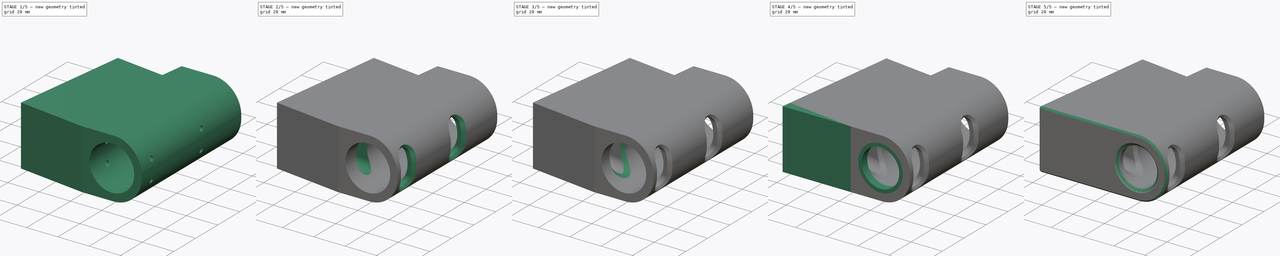
[diagram: build sequence overview — one tinted view per stage of 5, left to right]
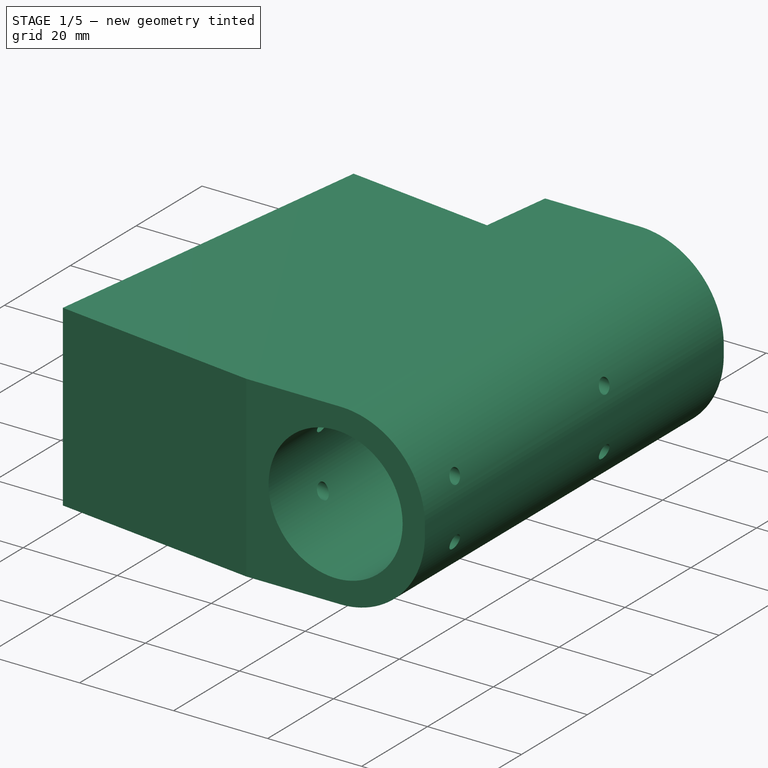
[diagram: stage 1 of 5 — iso view after this stage's code; geometry added in this stage tinted green]
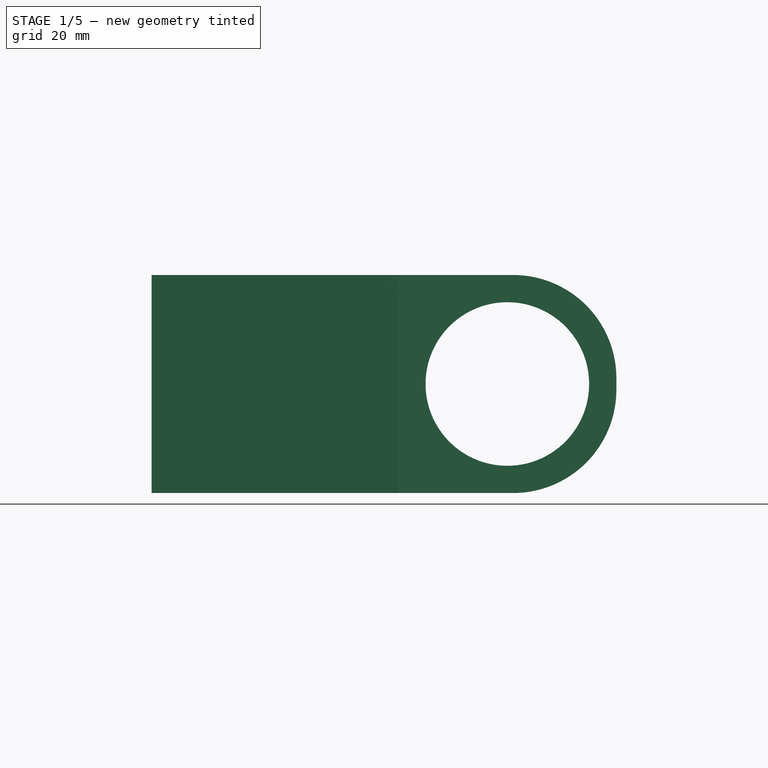
[diagram: stage 1 of 5 — front view after this stage's code; geometry added in this stage tinted green]
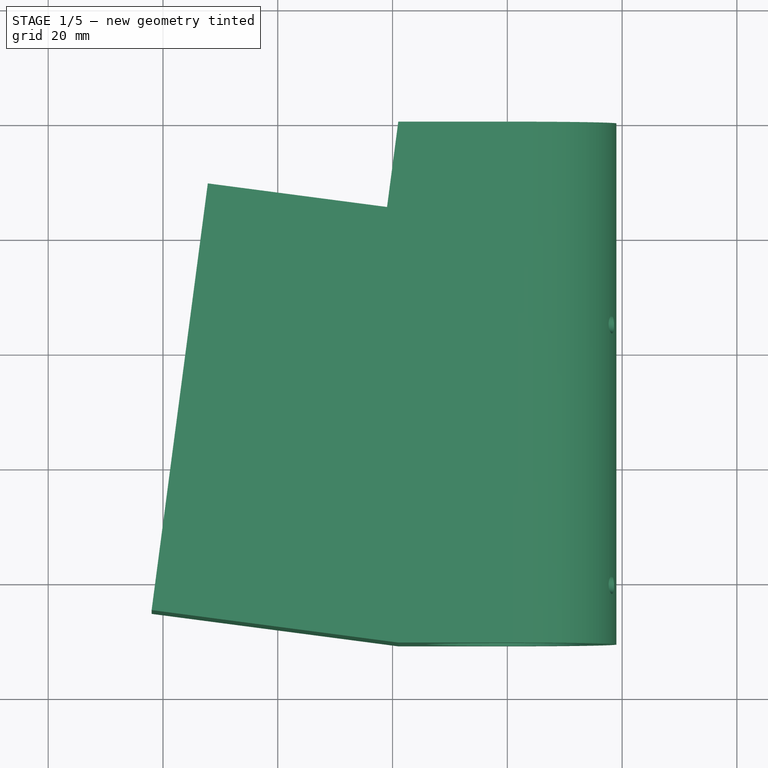
[diagram: stage 1 of 5 — top view after this stage's code; geometry added in this stage tinted green]
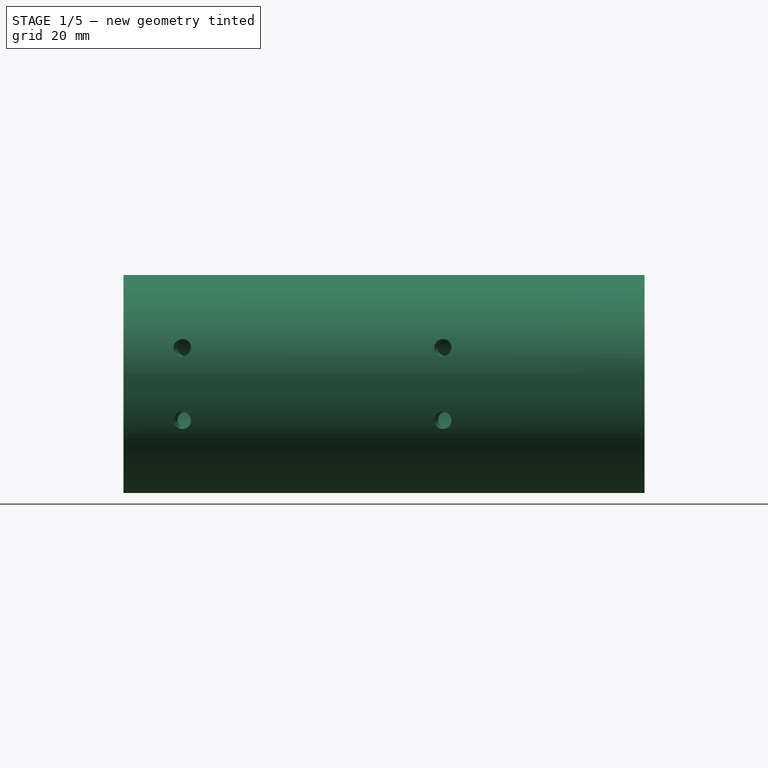
[diagram: stage 1 of 5 — right view after this stage's code; geometry added in this stage tinted green]
FCSTD DOCUMENT  (FreeCAD 0.18R16110 (Git))
Label: Support_mat_V1
License: All rights reserved
LicenseURL: http://en.wikipedia.org/wiki/All_rights_reserved
objects: PartDesign::Chamfer×10, Sketcher::SketchObject×8, PartDesign::Pocket×5, PartDesign::Pad×3, PartDesign::Fillet×1, PartDesign::Plane×1, PartDesign::Body×1
note: 37 computed .brp shape members not serialized (recipe doc carries the construction recipe); baked Part::Feature solids carry a one-line shape summary decoded from their .brp

FEATURE [Sketcher::SketchObject] Sketch
  MapMode = 5
  Support = -> [XY_Plane]
  sketch-geometry (7):
    g0: LineSegment StartX=19 StartY=0 StartZ=0 EndX=-19 EndY=0 EndZ=0
    g1: LineSegment StartX=-61.9779 StartY=-85.1185 StartZ=0 EndX=-19 EndY=-90.7766 EndZ=0
    g2: LineSegment StartX=-19 StartY=-90.7766 StartZ=0 EndX=19 EndY=-90.7766 EndZ=0
    g3: LineSegment StartX=19 StartY=-90.7766 StartZ=0 EndX=19 EndY=0 EndZ=0
    g4: LineSegment StartX=-19 StartY=0 StartZ=0 EndX=-20.9579 EndY=-14.8717 EndZ=0
    g5: LineSegment StartX=-20.9579 StartY=-14.8717 StartZ=0 EndX=-52.1884 EndY=-10.7601 EndZ=0
    g6: LineSegment StartX=-52.1884 StartY=-10.7601 StartZ=0 EndX=-61.9779 EndY=-85.1185 EndZ=0
  constraints (20):
    c: PointOnObject(g0,g-1)
    c: Coincident(g1,g2)
    c: Horizontal(g2)
    c: Coincident(g2,g3)
    c: Coincident(g3,g0)
    c: Vertical(g3)
    c: Coincident(g0,g4)
    c: Coincident(g4,g5)
    c: Coincident(g5,g6)
    c: Coincident(g6,g1)
    c: Angle(g4,g0) = 1.7017
    c: Perpendicular(g4,g5)
    c: Perpendicular(g5,g6)
    c: Perpendicular(g1,g6)
    c: Distance(g5) = 31.5
    c: Distance(g4) = 15
    c: DistanceX(g0,g0) = 38
    c: Distance(g6) = 75
    c: Equal(g2,g0)
    c: Symmetric(g0,g0,g-2)
FEATURE [PartDesign::Pad] Pad
  Length = 38
  Length2 = 100
  Profile = -> Sketch
  Type = 0
FEATURE [Sketcher::SketchObject] Sketch001
  MapMode = 5
  Placement = pos=(0,0,0) rot=(0,0.707107,0.707107;3.14159rad)
  Support = -> [Pad]
  sketch-geometry (1):
    g0: Circle CenterX=0 CenterY=19 CenterZ=0 NormalX=0 NormalY=0 NormalZ=1 AngleXU=0 Radius=14.25
  constraints (3):
    c: Radius(g0) = 14.25
    c: Distance(g-1,g0) = 19
    c: PointOnObject(g0,g-2)
FEATURE [PartDesign::Pocket] Pocket
  BaseFeature = -> Pad
  Length = 100
  Length2 = 100
  Profile = -> Sketch001
  Type = 0
FEATURE [PartDesign::Fillet] Fillet
  Base = -> Pocket [Edge7,Edge8]
  BaseFeature = -> Pocket
  Radius = 18
FEATURE [Sketcher::SketchObject] Sketch002
  ExternalGeometry = -> [Fillet]
  MapMode = 5
  Placement = pos=(-49.9068,6.57036,0) rot=(-0.527011,0.600941,0.600941;4.11164rad)
  Support = -> [Fillet]
  sketch-geometry (4):
    g0: Circle CenterX=32.48 CenterY=25.3333 CenterZ=0 NormalX=0 NormalY=0 NormalZ=1 AngleXU=0 Radius=1.5
    g1: Circle CenterX=32.48 CenterY=12.6667 CenterZ=0 NormalX=0 NormalY=0 NormalZ=1 AngleXU=0 Radius=1.5
    g2: Circle CenterX=77.48 CenterY=25.3333 CenterZ=0 NormalX=0 NormalY=0 NormalZ=1 AngleXU=0 Radius=1.5
    g3: Circle CenterX=77.48 CenterY=12.6667 CenterZ=0 NormalX=0 NormalY=0 NormalZ=1 AngleXU=0 Radius=1.5
  constraints (12):
    c: Radius(g3) = 1.5
    c: Equal(g3,g2)
    c: Equal(g3,g0)
    c: Equal(g3,g1)
    c: Distance(g0,g-3) = 15
    c: Distance(g1,g-3) = 15
    c: Distance(g2,g-5) = 15
    c: Distance(g3,g-5) = 15
    c: DistanceY(g-1,g1) = 12.6667
    c: Distance(g0,g-4) = 12.6667
    c: Distance(g2,g-4) = 12.6667
    c: DistanceY(g-1,g3) = 12.6667
FEATURE [PartDesign::Pocket] Pocket001
  BaseFeature = -> Fillet
  Length = 100
  Length2 = 100
  Profile = -> Sketch002
  Type = 0
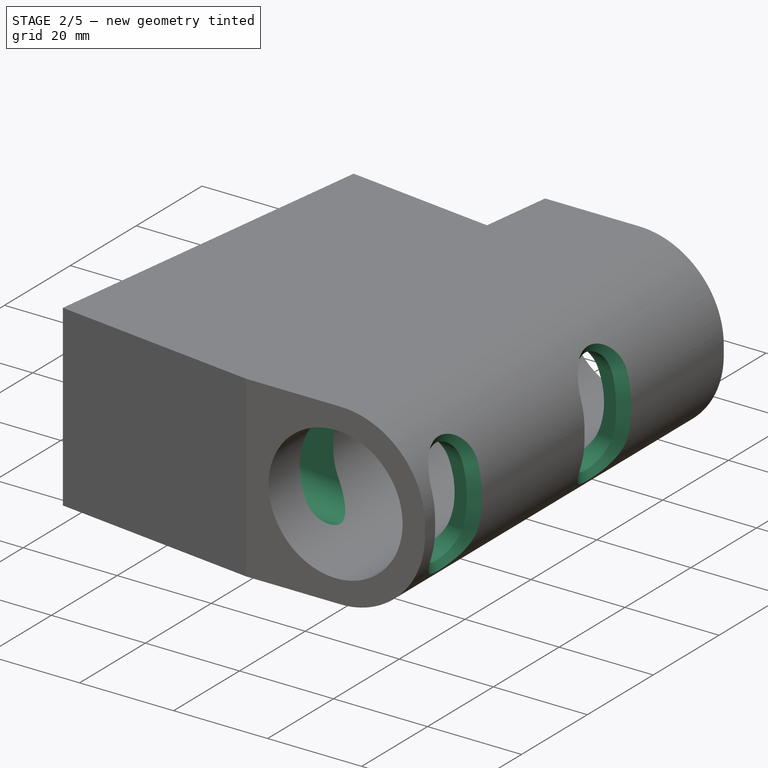
[diagram: stage 2 of 5 — iso view after this stage's code; geometry added in this stage tinted green]
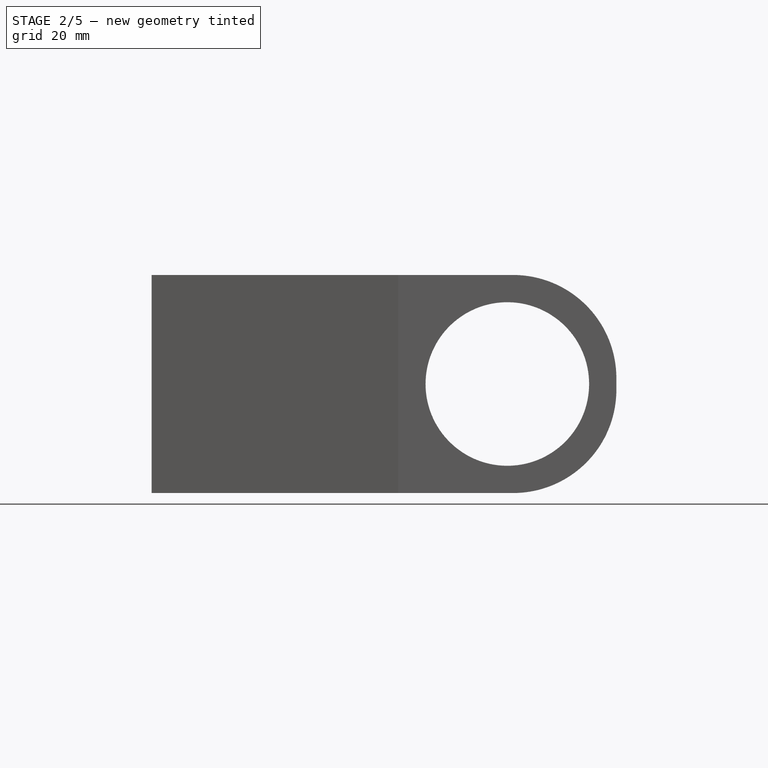
[diagram: stage 2 of 5 — front view after this stage's code; geometry added in this stage tinted green]
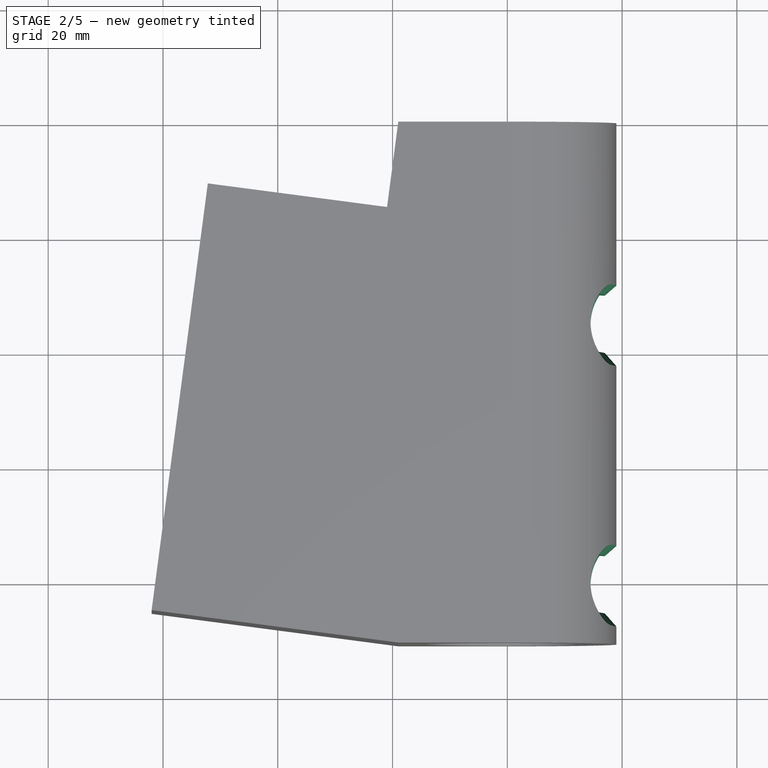
[diagram: stage 2 of 5 — top view after this stage's code; geometry added in this stage tinted green]
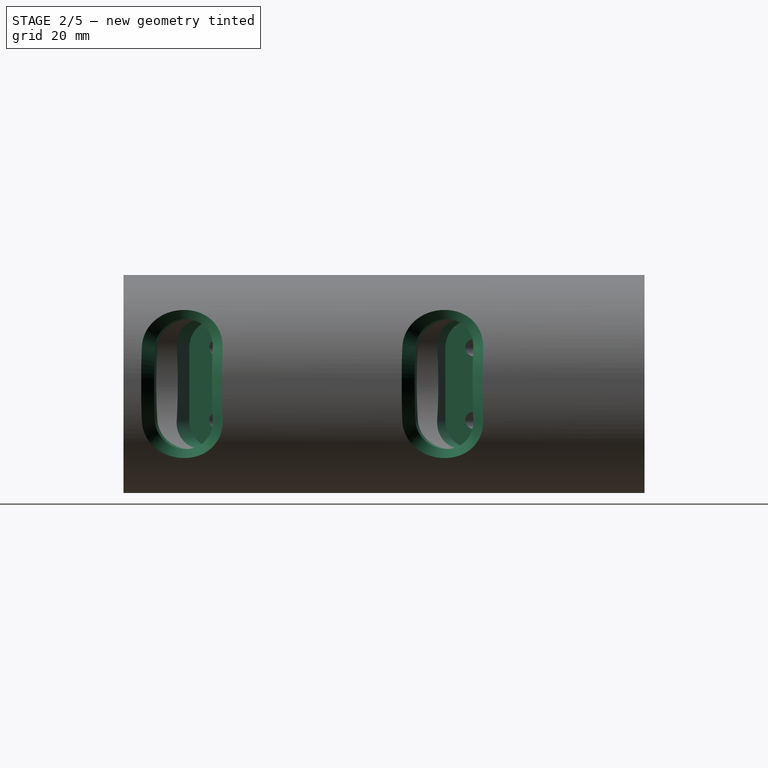
[diagram: stage 2 of 5 — right view after this stage's code; geometry added in this stage tinted green]
FEATURE [PartDesign::Plane] DatumPlane
  Length = 125.134
  MapMode = 5
  Placement = pos=(-18.6763,2.45878,0) rot=(-0.527011,0.600941,0.600941;4.11164rad)
  ResizeMode = 0
  Support = -> [Pocket001]
  Width = 62.57
FEATURE [Sketcher::SketchObject] Sketch003
  ExternalGeometry = -> [Pocket001]
  MapMode = 5
  Placement = pos=(-18.6763,2.45878,0) rot=(-0.527011,0.600941,0.600941;4.11164rad)
  Support = -> [DatumPlane]
  sketch-geometry (8):
    g0: ArcOfCircle CenterX=32.48 CenterY=25.3333 CenterZ=0 NormalX=0 NormalY=0 NormalZ=1 AngleXU=0 Radius=5 StartAngle=1.1e-15 EndAngle=3.14159
    g1: ArcOfCircle CenterX=32.48 CenterY=12.6667 CenterZ=0 NormalX=0 NormalY=0 NormalZ=1 AngleXU=0 Radius=5 StartAngle=3.14159 EndAngle=6.28319
    g2: LineSegment StartX=27.48 StartY=25.3333 StartZ=0 EndX=27.48 EndY=12.6667 EndZ=0
    g3: LineSegment StartX=37.48 StartY=25.3333 StartZ=0 EndX=37.48 EndY=12.6667 EndZ=0
    g4: ArcOfCircle CenterX=77.48 CenterY=25.3333 CenterZ=0 NormalX=0 NormalY=0 NormalZ=1 AngleXU=0 Radius=5 StartAngle=0 EndAngle=3.14159
    g5: ArcOfCircle CenterX=77.48 CenterY=12.6667 CenterZ=0 NormalX=0 NormalY=0 NormalZ=1 AngleXU=0 Radius=5 StartAngle=3.14159 EndAngle=6.28319
    g6: LineSegment StartX=72.48 StartY=25.3333 StartZ=0 EndX=72.48 EndY=12.6667 EndZ=0
    g7: LineSegment StartX=82.48 StartY=25.3333 StartZ=0 EndX=82.48 EndY=12.6667 EndZ=0
  constraints (16):
    c: Tangent(g0,g3) = 1.5708
    c: Tangent(g0,g2) = -1.5708
    c: Tangent(g2,g1) = -1.5708
    c: Tangent(g3,g1) = 1.5708
    c: Vertical(g2)
    c: Coincident(g0,g-3)
    c: Coincident(g1,g-4)
    c: Radius(g1) = 5
    c: Tangent(g4,g7) = 1.5708
    c: Tangent(g4,g6) = -1.5708
    c: Tangent(g6,g5) = -1.5708
    c: Tangent(g7,g5) = 1.5708
    c: Vertical(g6)
    c: Coincident(g4,g-5)
    c: Coincident(g5,g-6)
    c: Radius(g5) = 5
FEATURE [PartDesign::Pocket] Pocket002
  BaseFeature = -> Pocket001
  Length = 70
  Length2 = 100
  Profile = -> Sketch003
  Type = 0
FEATURE [Sketcher::SketchObject] Sketch004
  ExternalGeometry = -> [Pocket002,DatumPlane]
  MapMode = 5
  Placement = pos=(-2.2816,-17.3305,0) rot=(0.046297,0.706349,0.706349;3.04907rad)
  Support = -> [Pocket002]
  sketch-geometry (1):
    g0: Circle CenterX=34.8375 CenterY=19 CenterZ=0 NormalX=0 NormalY=0 NormalZ=1 AngleXU=0 Radius=1.5
  constraints (3):
    c: Radius(g0) = 1.5
    c: Distance(g0,g-3) = 19
    c: Distance(g0,g-4) = 15.5
FEATURE [PartDesign::Pocket] Pocket003
  BaseFeature = -> Pocket002
  Length = 30
  Length2 = 100
  Profile = -> Sketch004
  Type = 0
FEATURE [PartDesign::Chamfer] Chamfer
  Base = -> Pocket003 [Edge80,Edge82,Edge83,Edge85,Edge84]
  BaseFeature = -> Pocket003
  Size = 2
FEATURE [PartDesign::Chamfer] Chamfer001
  Base = -> Chamfer [Edge52,Edge48]
  BaseFeature = -> Chamfer
  Size = 2
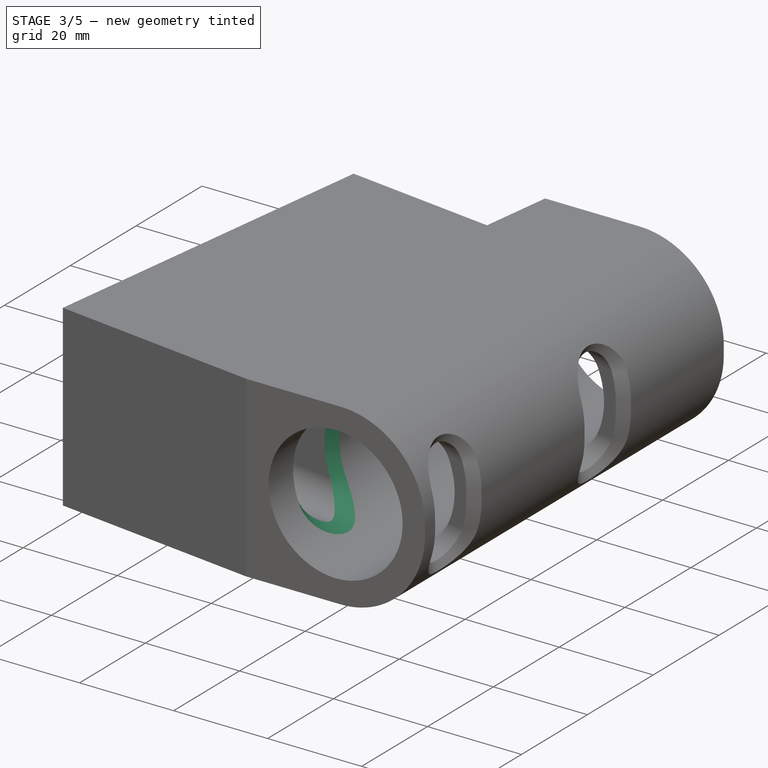
[diagram: stage 3 of 5 — iso view after this stage's code; geometry added in this stage tinted green]
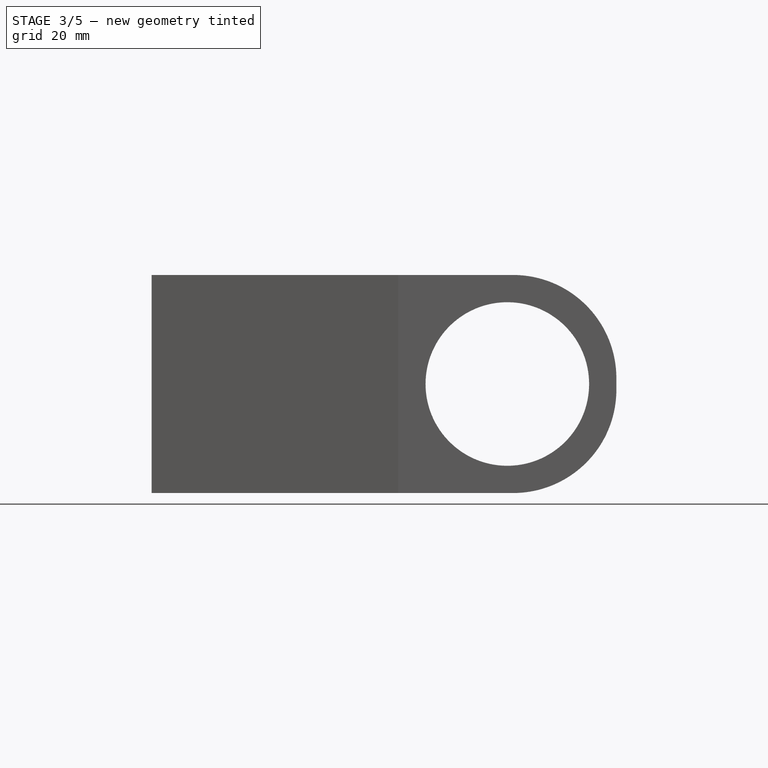
[diagram: stage 3 of 5 — front view after this stage's code; geometry added in this stage tinted green]
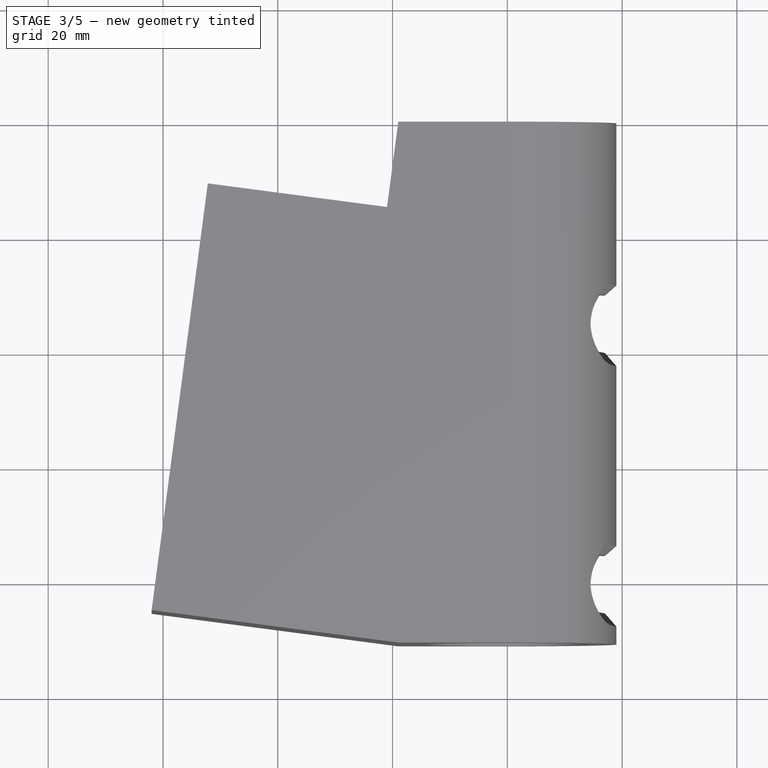
[diagram: stage 3 of 5 — top view after this stage's code; geometry added in this stage tinted green]
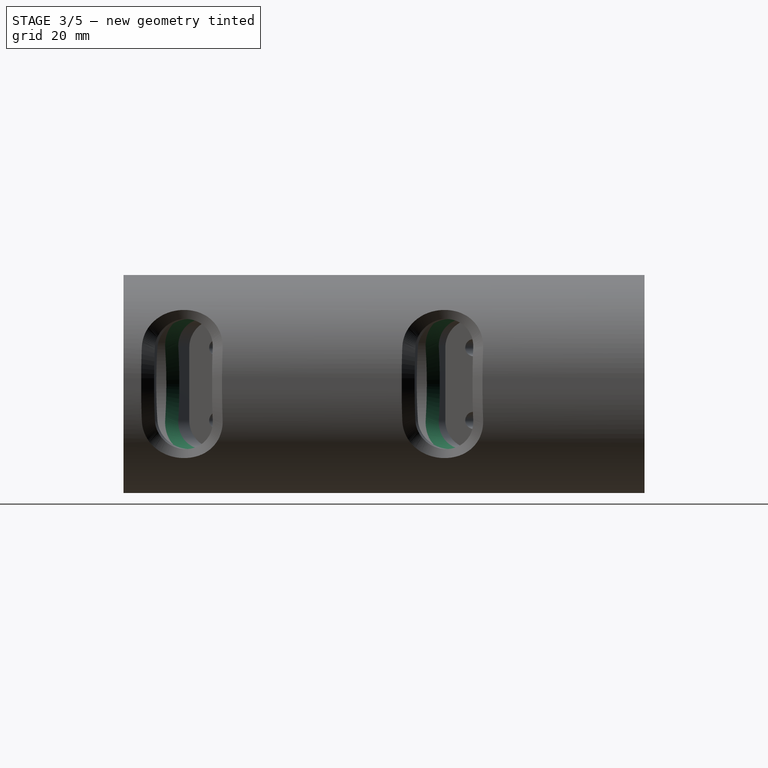
[diagram: stage 3 of 5 — right view after this stage's code; geometry added in this stage tinted green]
FEATURE [PartDesign::Chamfer] Chamfer002
  Base = -> Chamfer001 [Edge70]
  BaseFeature = -> Chamfer001
  Size = 2
FEATURE [PartDesign::Chamfer] Chamfer003
  Base = -> Chamfer002 [Edge11]
  BaseFeature = -> Chamfer002
  Size = 2
FEATURE [PartDesign::Chamfer] Chamfer004
  Base = -> Chamfer003 [Edge11]
  BaseFeature = -> Chamfer003
  Size = 2
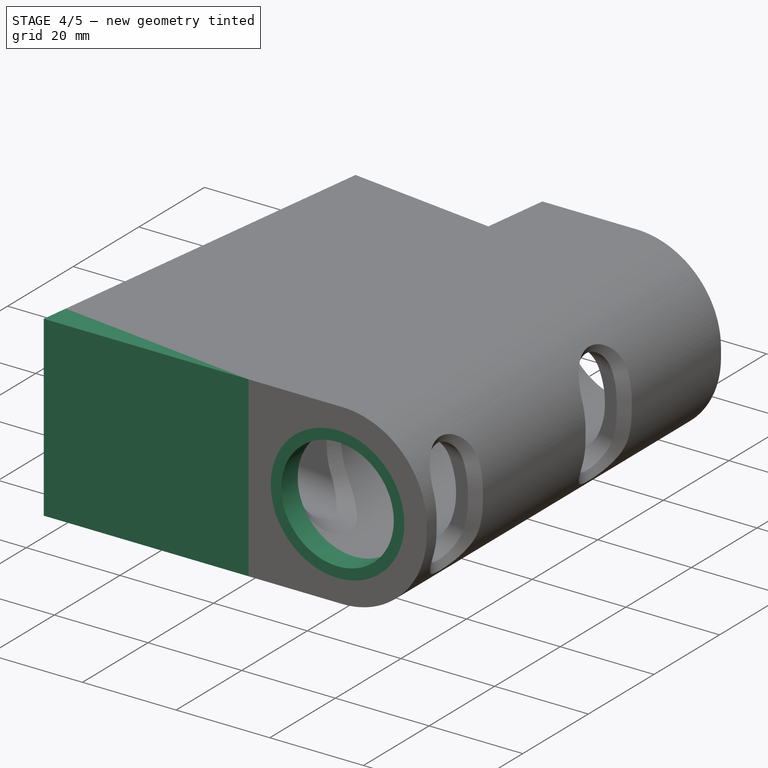
[diagram: stage 4 of 5 — iso view after this stage's code; geometry added in this stage tinted green]
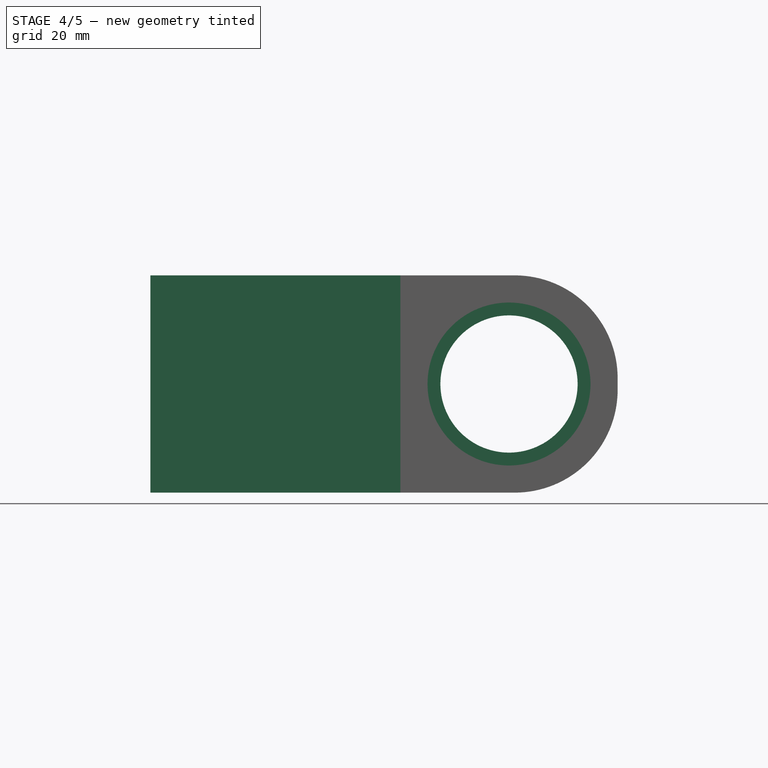
[diagram: stage 4 of 5 — front view after this stage's code; geometry added in this stage tinted green]
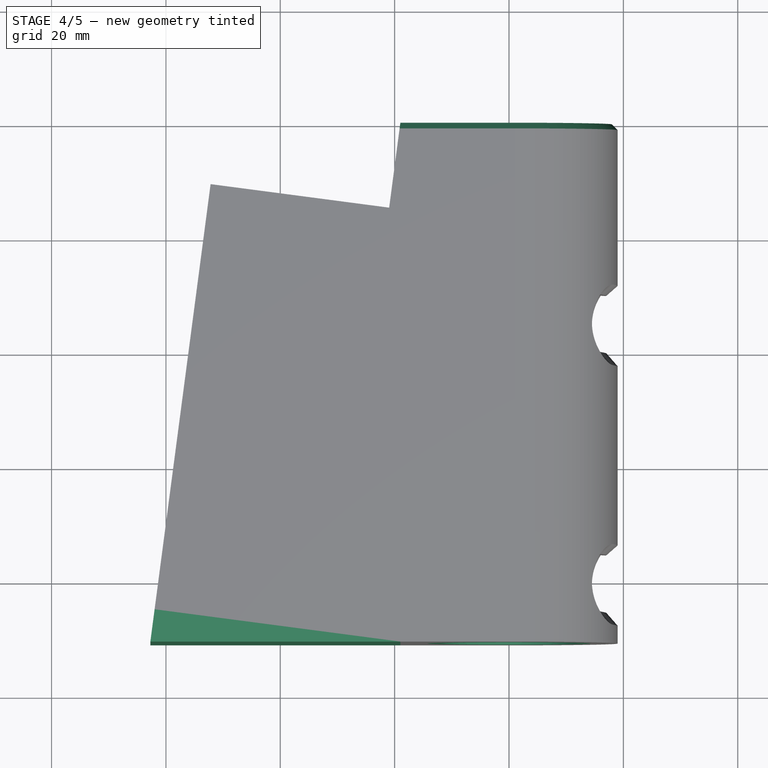
[diagram: stage 4 of 5 — top view after this stage's code; geometry added in this stage tinted green]
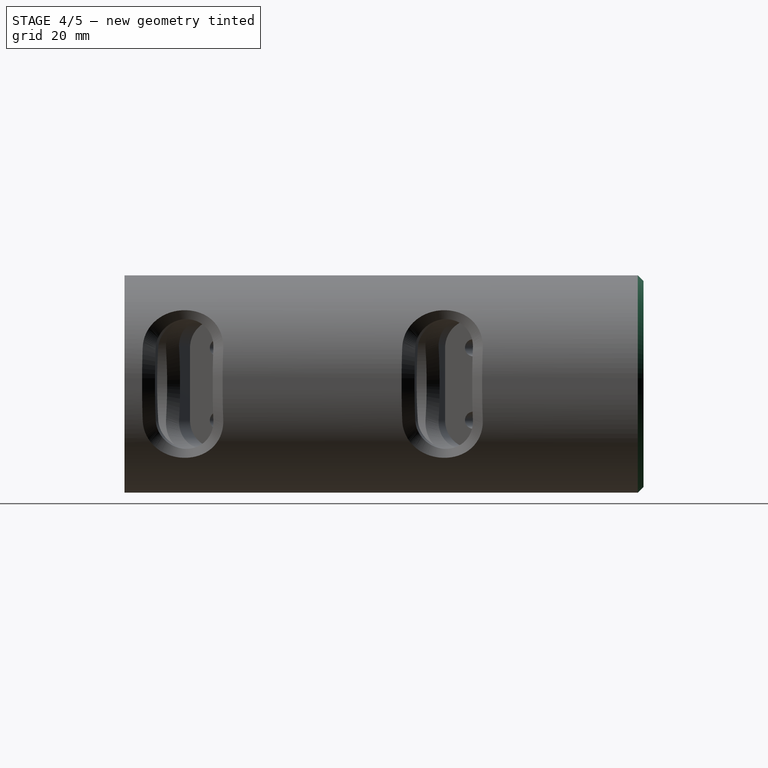
[diagram: stage 4 of 5 — right view after this stage's code; geometry added in this stage tinted green]
FEATURE [PartDesign::Chamfer] Chamfer005
  Base = -> Chamfer004 [Edge84]
  BaseFeature = -> Chamfer004
  Size = 1
FEATURE [Sketcher::SketchObject] Sketch006
  MapMode = 5
  Placement = pos=(0,0,38) rot=(0,0,1;0rad)
  sketch-geometry (3):
    g0: LineSegment StartX=1 StartY=-90.7766 StartZ=0 EndX=-61.6371 EndY=-82.5303 EndZ=0
    g1: LineSegment StartX=-61.6371 StartY=-82.5303 StartZ=0 EndX=-62.7228 EndY=-90.7766 EndZ=0
    g2: LineSegment StartX=-62.7228 StartY=-90.7766 StartZ=0 EndX=1 EndY=-90.7766 EndZ=0
  constraints (5):
    c: Coincident(g0,g1)
    c: Coincident(g1,g2)
    c: Coincident(g2,g0)
    c: Horizontal(g2)
    c: Perpendicular(g1,g0)
FEATURE [PartDesign::Pad] Pad002
  BaseFeature = -> Chamfer005
  Length = 38
  Length2 = 100
  Profile = -> Sketch006
  Reversed = true
  Type = 0
FEATURE [Sketcher::SketchObject] Sketch007
  MapMode = 5
  Placement = pos=(0,-90.7766,0) rot=(1,0,0;1.5708rad)
  Support = -> [Pad002]
  sketch-geometry (1):
    g0: Circle CenterX=0 CenterY=19 CenterZ=0 NormalX=0 NormalY=0 NormalZ=1 AngleXU=0 Radius=17
  constraints (3):
    c: PointOnObject(g0,g-2)
    c: Radius(g0) = 17
    c: DistanceY(g-1,g0) = 19
FEATURE [PartDesign::Pad] Pad003
  BaseFeature = -> Pad002
  Length = 5
  Length2 = 100
  Profile = -> Sketch007
  Reversed = true
  Type = 0
FEATURE [Sketcher::SketchObject] Sketch008
  ExternalGeometry = -> [Pad003]
  MapMode = 5
  Placement = pos=(0,-90.7766,0) rot=(1,0,0;1.5708rad)
  Support = -> [Pad003]
  sketch-geometry (1):
    g0: Circle CenterX=0 CenterY=19 CenterZ=0 NormalX=0 NormalY=0 NormalZ=1 AngleXU=0 Radius=12
  constraints (2):
    c: Coincident(g0,g-3)
    c: Radius(g0) = 12
FEATURE [PartDesign::Pocket] Pocket004
  BaseFeature = -> Pad003
  Length = 5
  Length2 = 100
  Profile = -> Sketch008
  Type = 0
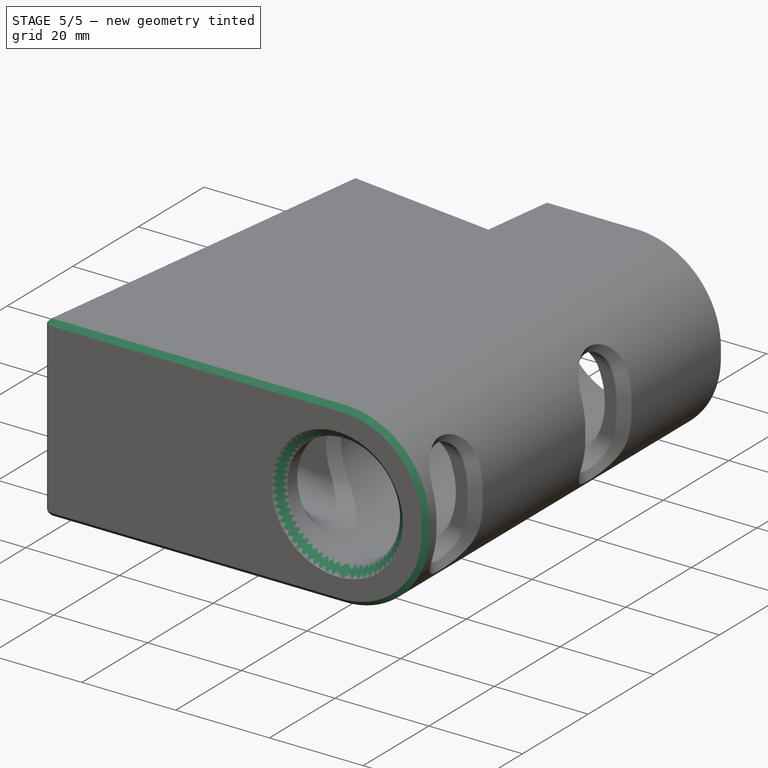
[diagram: stage 5 of 5 — iso view after this stage's code; geometry added in this stage tinted green]
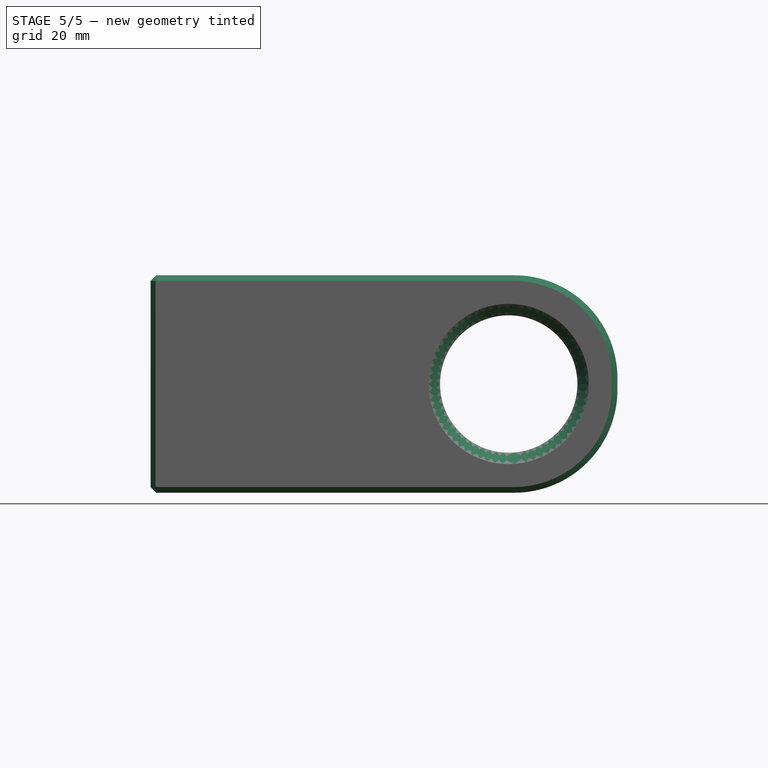
[diagram: stage 5 of 5 — front view after this stage's code; geometry added in this stage tinted green]
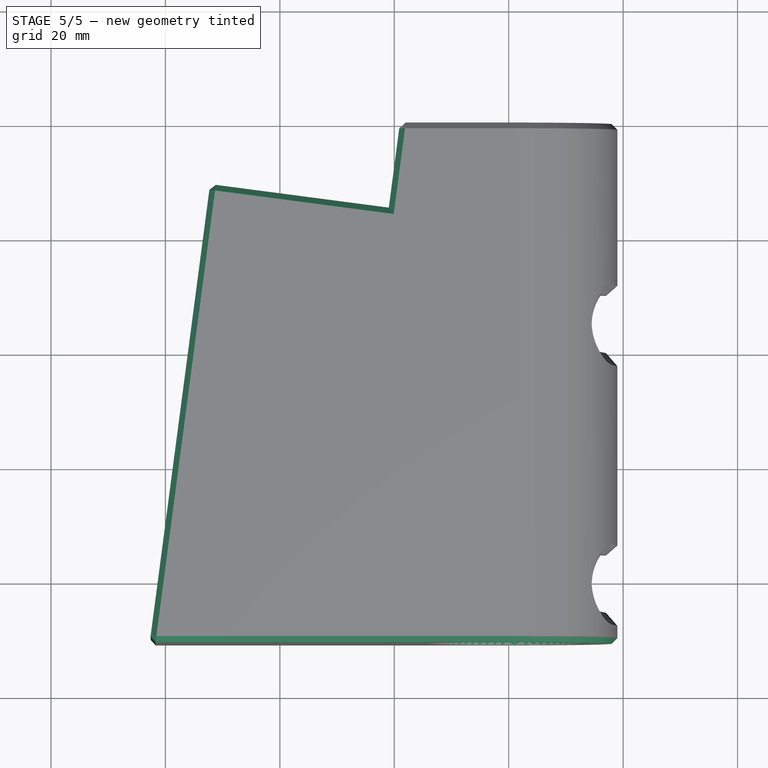
[diagram: stage 5 of 5 — top view after this stage's code; geometry added in this stage tinted green]
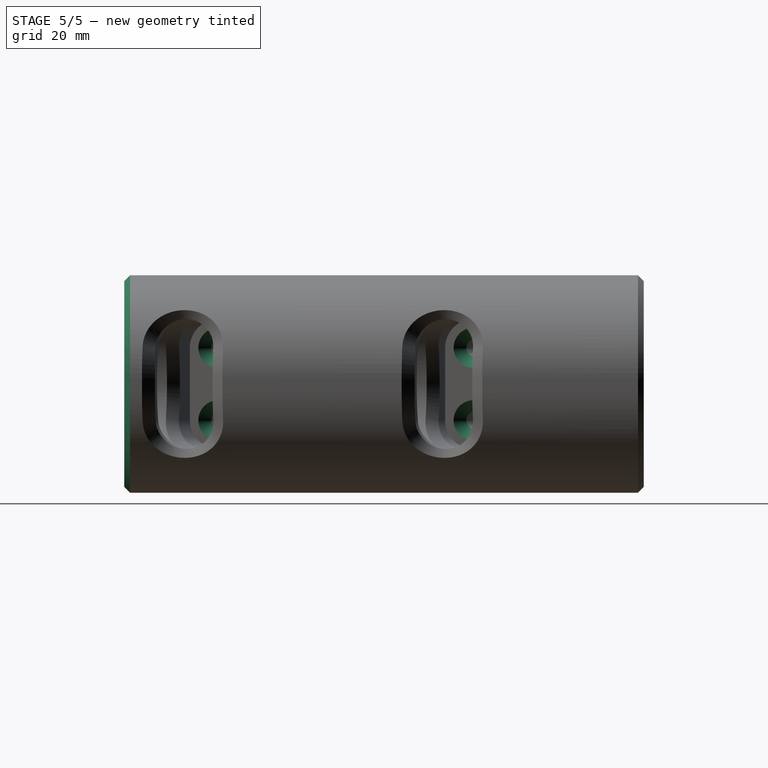
[diagram: stage 5 of 5 — right view after this stage's code; geometry added in this stage tinted green]
FEATURE [PartDesign::Chamfer] Chamfer006
  Base = -> Pocket004 [Edge201]
  BaseFeature = -> Pocket004
  Size = 2
FEATURE [PartDesign::Chamfer] Chamfer007
  Base = -> Chamfer006 [Edge98,Edge194,Edge196,Edge193,Edge207,Edge197,Edge195,Edge175,Edge176]
  BaseFeature = -> Chamfer006
  Size = 1
FEATURE [PartDesign::Chamfer] Chamfer008
  Base = -> Chamfer007 [Edge167]
  BaseFeature = -> Chamfer007
  Size = 1
FEATURE [PartDesign::Chamfer] Chamfer009
  Base = -> Chamfer008 [Edge253,Edge251,Edge257,Edge255]
  BaseFeature = -> Chamfer008
  Size = 2
FEATURE [PartDesign::Body] Body
  Group = -> [Sketch,Pad,Sketch001,Pocket,Fillet,Sketch002,Pocket001,DatumPlane,Sketch003,Pocket002,Sketch004,Pocket003,Chamfer,Chamfer001,Chamfer002,Chamfer003,Chamfer004,Chamfer005,Sketch006,Pad002,Sketch007,Pad003,Sketch008,Pocket004,Chamfer006,Chamfer007,Chamfer008,Chamfer009]
  Origin = -> Origin
  Tip = -> Chamfer009
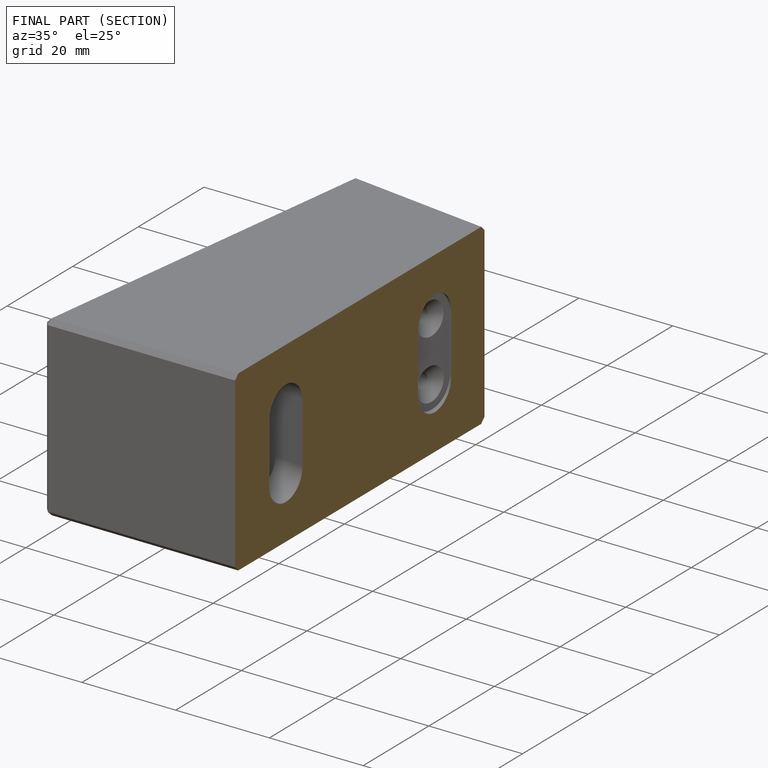
[diagram: finished part — half-section view (interior)]
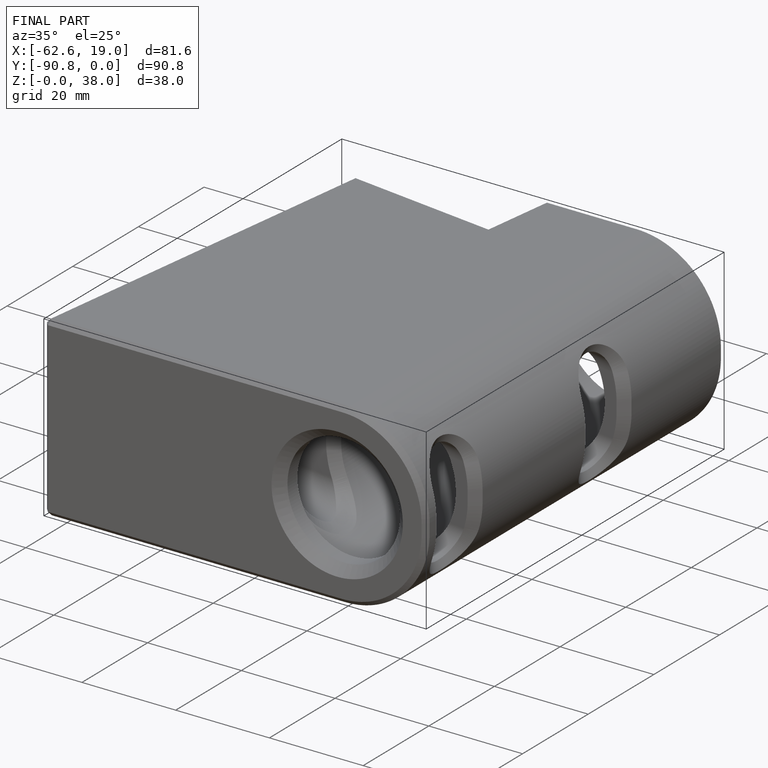
[diagram: finished part — iso view with bounding-box wireframe]
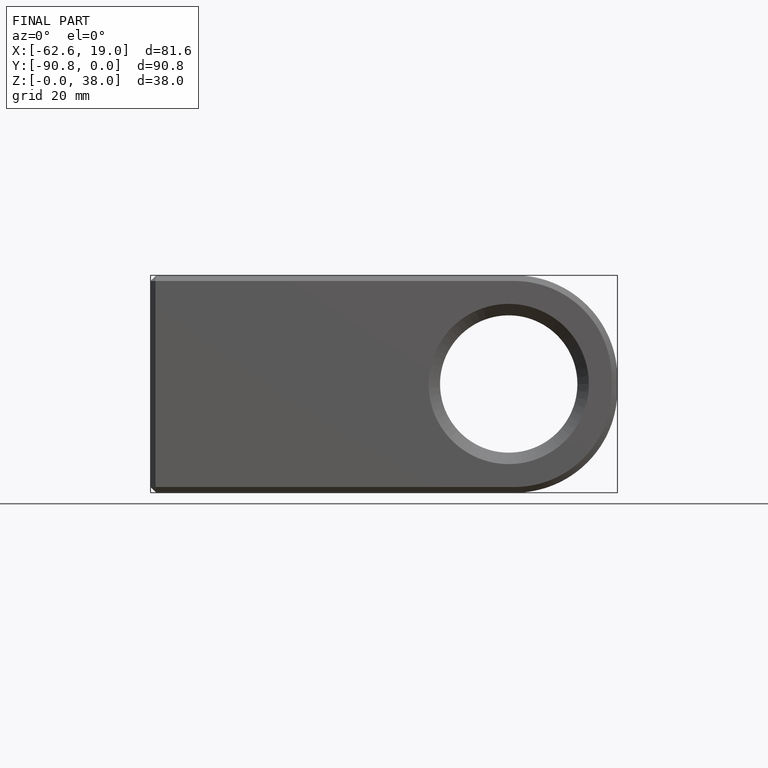
[diagram: finished part — front view with bounding-box wireframe]
